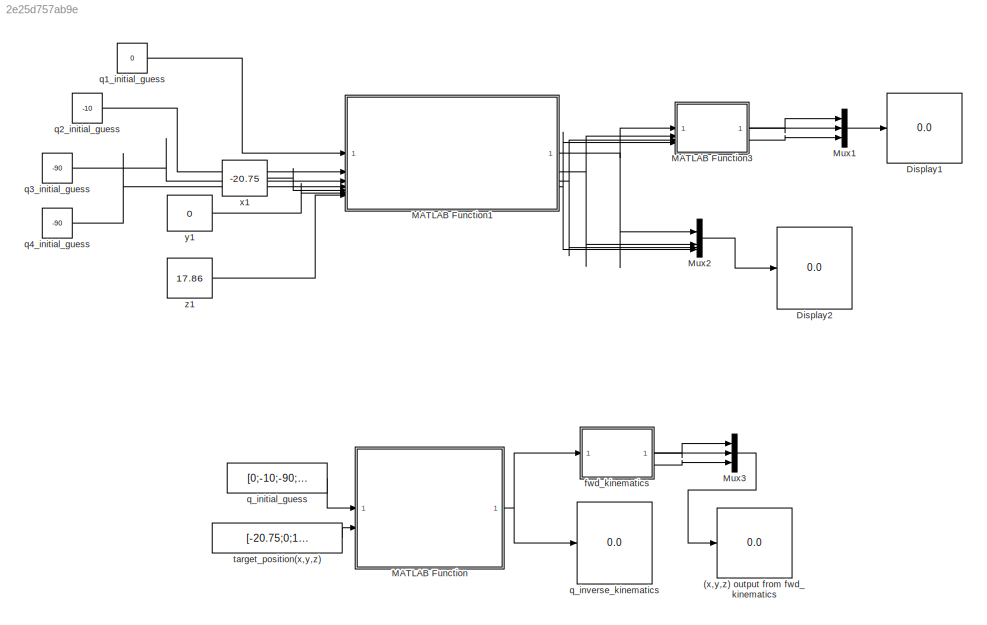
MODEL slx_2e25d757ab9e
KIND model
CONFIG AbsTol = auto
CONFIG EnableMultiTasking = off
CONFIG FixedStep = auto
CONFIG MaxStep = auto
CONFIG MinStep = auto
CONFIG RelTol = 1e-3
CONFIG SampleTimeConstraint = Unconstrained
CONFIG SolverName = VariableStepAuto
CONFIG StartTime = 0.0
CONFIG StopTime = 10.0
BLOCK [Display] (x,y,z) output from fwd_kinematics 
  Decimation = 1
BLOCK [Display] Display1
  Decimation = 1
BLOCK [Display] Display2
  Decimation = 1
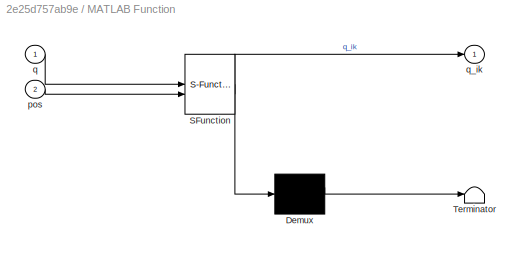
BLOCK [SubSystem] MATLAB Function
  ErrorFcn = Stateflow.Translate.translate
  PermitHierarchicalResolution = ExplicitOnly
  SFBlockType = MATLAB Function
  TreatAsAtomicUnit = on
BLOCK [Demux] MATLAB Function/ Demux 
  Outputs = 1
BLOCK [S-Function] MATLAB Function/ SFunction 
  EnableBusSupport = on
  FunctionName = sf_sfun
  PortCounts = [2 2]
  SFcnIsStateOwnerBlock = off
  SFunctionDeploymentMode = off
  Tag = Stateflow S-Function 2
BLOCK [Terminator] MATLAB Function/ Terminator 
BLOCK [Inport] MATLAB Function/pos
  Port = 2
BLOCK [Inport] MATLAB Function/q
BLOCK [Outport] MATLAB Function/q_ik
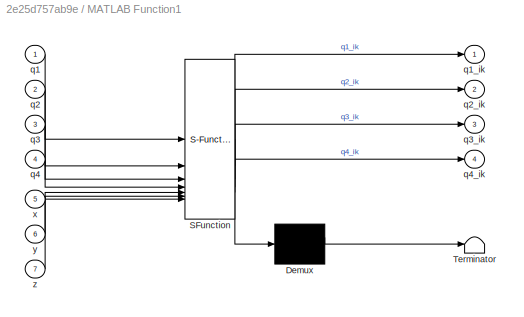
BLOCK [SubSystem] MATLAB Function1
  ErrorFcn = Stateflow.Translate.translate
  PermitHierarchicalResolution = ExplicitOnly
  SFBlockType = MATLAB Function
  TreatAsAtomicUnit = on
BLOCK [Demux] MATLAB Function1/ Demux 
  Outputs = 1
BLOCK [S-Function] MATLAB Function1/ SFunction 
  EnableBusSupport = on
  FunctionName = sf_sfun
  PortCounts = [7 5]
  SFcnIsStateOwnerBlock = off
  SFunctionDeploymentMode = off
  Tag = Stateflow S-Function 1
BLOCK [Terminator] MATLAB Function1/ Terminator 
BLOCK [Inport] MATLAB Function1/q1
BLOCK [Outport] MATLAB Function1/q1_ik
BLOCK [Inport] MATLAB Function1/q2
  Port = 2
BLOCK [Outport] MATLAB Function1/q2_ik
  Port = 2
BLOCK [Inport] MATLAB Function1/q3
  Port = 3
BLOCK [Outport] MATLAB Function1/q3_ik
  Port = 3
BLOCK [Inport] MATLAB Function1/q4
  Port = 4
BLOCK [Outport] MATLAB Function1/q4_ik
  Port = 4
BLOCK [Inport] MATLAB Function1/x
  Port = 5
BLOCK [Inport] MATLAB Function1/y
  Port = 6
BLOCK [Inport] MATLAB Function1/z
  Port = 7
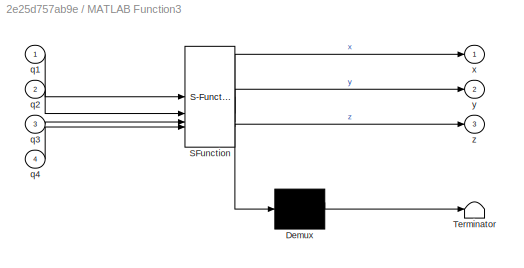
BLOCK [SubSystem] MATLAB Function3
  ErrorFcn = Stateflow.Translate.translate
  PermitHierarchicalResolution = ExplicitOnly
  SFBlockType = MATLAB Function
  TreatAsAtomicUnit = on
BLOCK [Demux] MATLAB Function3/ Demux 
  Outputs = 1
BLOCK [S-Function] MATLAB Function3/ SFunction 
  EnableBusSupport = on
  FunctionName = sf_sfun
  PortCounts = [4 4]
  SFcnIsStateOwnerBlock = off
  SFunctionDeploymentMode = off
  Tag = Stateflow S-Function 4
BLOCK [Terminator] MATLAB Function3/ Terminator 
BLOCK [Inport] MATLAB Function3/q1
BLOCK [Inport] MATLAB Function3/q2
  Port = 2
BLOCK [Inport] MATLAB Function3/q3
  Port = 3
BLOCK [Inport] MATLAB Function3/q4
  Port = 4
BLOCK [Outport] MATLAB Function3/x
BLOCK [Outport] MATLAB Function3/y
  Port = 2
BLOCK [Outport] MATLAB Function3/z
  Port = 3
BLOCK [Mux] Mux1
  DisplayOption = bar
  Inputs = 3
BLOCK [Mux] Mux2
  DisplayOption = bar
BLOCK [Mux] Mux3
  DisplayOption = bar
  Inputs = 3
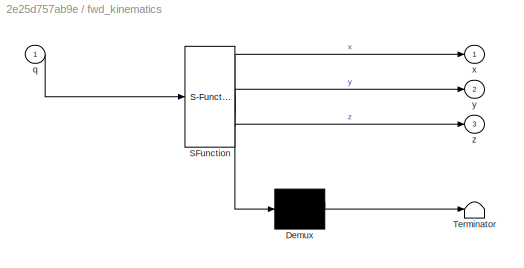
BLOCK [SubSystem] fwd_kinematics
  ErrorFcn = Stateflow.Translate.translate
  PermitHierarchicalResolution = ExplicitOnly
  SFBlockType = MATLAB Function
  TreatAsAtomicUnit = on
BLOCK [Demux] fwd_kinematics/ Demux 
  Outputs = 1
BLOCK [S-Function] fwd_kinematics/ SFunction 
  EnableBusSupport = on
  FunctionName = sf_sfun
  PortCounts = [1 4]
  SFcnIsStateOwnerBlock = off
  SFunctionDeploymentMode = off
  Tag = Stateflow S-Function 3
BLOCK [Terminator] fwd_kinematics/ Terminator 
BLOCK [Inport] fwd_kinematics/q
BLOCK [Outport] fwd_kinematics/x
BLOCK [Outport] fwd_kinematics/y
  Port = 2
BLOCK [Outport] fwd_kinematics/z
  Port = 3
BLOCK [Constant] q1_initial_guess
  Value = 0
BLOCK [Constant] q2_initial_guess
  Value = -10
BLOCK [Constant] q3_initial_guess
  Value = -90
BLOCK [Constant] q4_initial_guess
  Value = -90
BLOCK [Constant] q_initial_guess
  Value = [0;-10;-90;-90]
BLOCK [Display] q_inverse_kinematics
  Decimation = 1
BLOCK [Constant] target_position(x,y,z)
  Value = [-20.75;0;17.86]
BLOCK [Constant] x1
  Value = -20.75
BLOCK [Constant] y1
  Value = 0
BLOCK [Constant] z1
  Value = 17.86
NET MATLAB Function1:1 -> MATLAB Function3:1, Mux2:1
NET MATLAB Function1:2 -> MATLAB Function3:2, Mux2:2
NET MATLAB Function1:3 -> MATLAB Function3:3, Mux2:3
NET MATLAB Function1:4 -> MATLAB Function3:4, Mux2:4
LINE MATLAB Function3:1 -> Mux1:1
LINE MATLAB Function3:2 -> Mux1:2
LINE MATLAB Function3:3 -> Mux1:3
NET MATLAB Function:1 -> fwd_kinematics:1, q_inverse_kinematics:1
LINE Mux1:1 -> Display1:1
LINE Mux2:1 -> Display2:1
LINE Mux3:1 -> (x,y,z) output from fwd_kinematics :1
LINE fwd_kinematics:1 -> Mux3:1
LINE fwd_kinematics:2 -> Mux3:2
LINE fwd_kinematics:3 -> Mux3:3
LINE q1_initial_guess:1 -> MATLAB Function1:1
LINE q2_initial_guess:1 -> MATLAB Function1:2
LINE q3_initial_guess:1 -> MATLAB Function1:3
LINE q4_initial_guess:1 -> MATLAB Function1:4
LINE q_initial_guess:1 -> MATLAB Function:1
LINE target_position(x,y,z):1 -> MATLAB Function:2
LINE x1:1 -> MATLAB Function1:5
LINE y1:1 -> MATLAB Function1:6
LINE z1:1 -> MATLAB Function1:7
note: NET lines group one-source signal fan-out (src -> all destinations, sorted); 1:1 wires keep LINE
CHART MATLAB Function1 states=1 transitions=1
  STATE_LABEL 'eML_blk_kernel()'
  STATE_LABEL 'SCRIPT:\nfunction [q1_ik,q2_ik,q3_ik,q4_ik] = inverse_kinematics_func(q1,q2,q3,q4,x,y,z) \ne = 10^(-2);\npos = [x;y;z];\nqo = [q1;q2;q3;q4];\n%initially\ncounter = 0;  \n%J_inv_mat = inverse_jacobian_matrix(qo(1),qo(2),qo(3),qo(4));\nJ1 = [(7*pi*sin((pi*q1)/180)*sin((pi*q2)/180))/90 + (37*pi*cos((pi*q4)/180)*sin((pi*q1)/180)*sin((pi*q2)/180))/450,- (7*pi*cos((pi*q1)/180)*cos((pi*q2)/180))/90 - (37*pi*cos(...<+3608ch>'
CHART MATLAB Function states=1 transitions=1
  STATE_LABEL 'eML_blk_kernel()'
  STATE_LABEL 'SCRIPT:\nfunction q_ik = inverse_kinematics_func(q,pos) \nq1 = q(1);\nq2 = q(2);\nq3 = q(3);\nq4 = q(4);\ne = 10^(-2);\n%pos = [x;y;z];\nqo = [q1;q2;q3;q4];\n%initially\ncounter = 0;  \n%J_inv_mat = inverse_jacobian_matrix(qo(1),qo(2),qo(3),qo(4));\nJ1 = [(7*pi*sin((pi*q1)/180)*sin((pi*q2)/180))/90 + (37*pi*cos((pi*q4)/180)*sin((pi*q1)/180)*sin((pi*q2)/180))/450,- (7*pi*cos((pi*q1)/180)*cos((pi*q2)/180))/90 -...<+3608ch>'
CHART fwd_kinematics states=1 transitions=1
  STATE_LABEL 'eML_blk_kernel()'
  STATE_LABEL 'SCRIPT:\nfunction [x,y,z] = fcn(q)\nq1 = q(1);\nq2 = q(2);\nq3 = q(3);\nq4 = q(4);\nT1 = Transformation_func(q1,2.7,0,90);\nT2 = Transformation_func(q2,0,0,-90);\nT3 = Transformation_func(q3+90,14,0,-90);\nT4 = Transformation_func(q4-90,0,14.8,0);\nTT = T1*T2*T3*T4;\nx = TT(1,4);\ny = TT(2,4);\nz = TT(3,4);\nend'
CHART MATLAB Function3 states=1 transitions=1
  STATE_LABEL 'eML_blk_kernel()'
  STATE_LABEL 'SCRIPT:\nfunction [x,y,z] = fcn(q1,q2,q3,q4)\nT1 = Transformation_func(q1,2.7,0,90);\nT2 = Transformation_func(q2,0,0,-90);\nT3 = Transformation_func(q3+90,14,0,-90);\nT4 = Transformation_func(q4-90,0,14.8,0);\nTT = T1*T2*T3*T4;\nx = TT(1,4);\ny = TT(2,4);\nz = TT(3,4);\nend'
CHART  states=0 transitions=0
CHART  states=0 transitions=0
CHART  states=0 transitions=0
CHART  states=0 transitions=0
